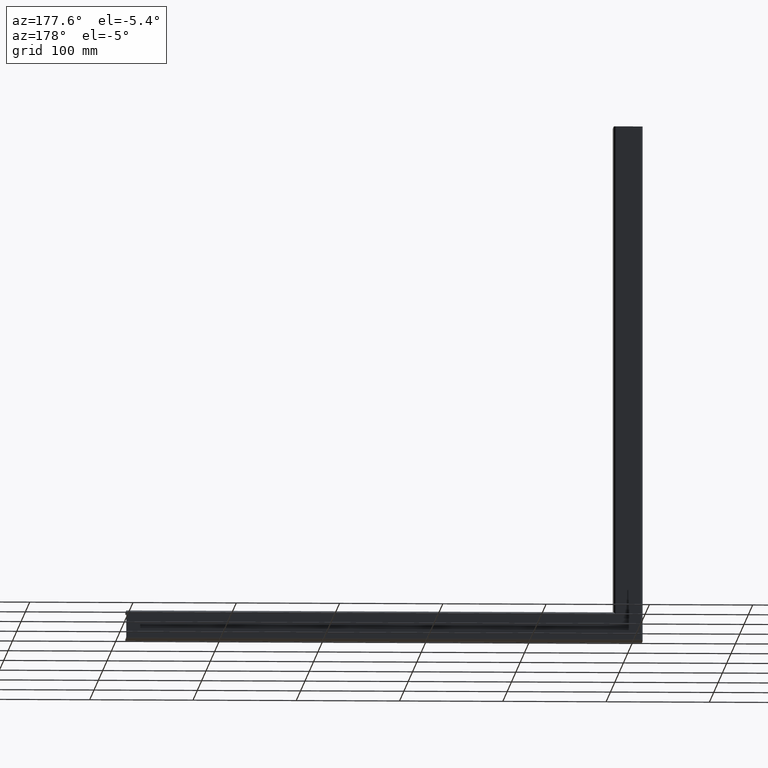
[diagram: clean part render]
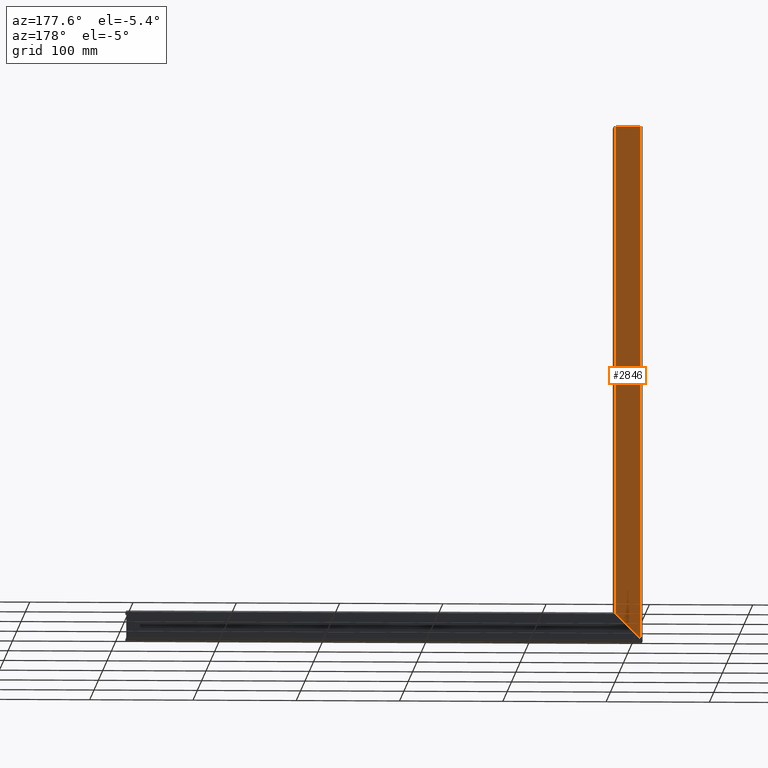
[diagram: same view with one face highlighted and labeled with its STEP entity id]
A machine part, auxiliary view. The second image highlights one B-rep face of the part: STEP entity #2846.
In plain terms, the highlighted planar face has unit normal (0, -1, 0).
Its self-contained STEP definition (entity closure, byte-faithful):
#326 = EDGE_CURVE ( 'NONE', #16030, #3477, #2890, .T. ) ;
#926 = VECTOR ( 'NONE', #2990, 1000.000000000000000 ) ;
#1493 = EDGE_CURVE ( 'NONE', #11846, #9061, #16071, .T. ) ;
#1678 = DIRECTION ( 'NONE',  ( -1.000000000000000000, -1.445602896647339163E-16, 0.000000000000000000 ) ) ;
#2846 = ADVANCED_FACE ( 'NONE', ( #12857 ), #5949, .F. ) ;
#2890 = LINE ( 'NONE', #10092, #13322 ) ;
#2908 = ORIENTED_EDGE ( 'NONE', *, *, #7332, .T. ) ;
#2990 = DIRECTION ( 'NONE',  ( 0.000000000000000000, 0.000000000000000000, -1.000000000000000000 ) ) ;
#3477 = VERTEX_POINT ( 'NONE', #15185 ) ;
#4576 = LINE ( 'NONE', #5765, #926 ) ;
#5765 = CARTESIAN_POINT ( 'NONE',  ( 12.00000000000000000, 13.00000000000000178, 0.000000000000000000 ) ) ;
#5949 = PLANE ( 'NONE',  #7686 ) ;
#5956 = DIRECTION ( 'NONE',  ( 0.7071067811865474617, 1.022195611122249302E-16, 0.7071067811865474617 ) ) ;
#6034 = LINE ( 'NONE', #13792, #10493 ) ;
#6070 = DIRECTION ( 'NONE',  ( 1.000000000000000000, 1.445602896647339163E-16, 0.000000000000000000 ) ) ;
#7067 = DIRECTION ( 'NONE',  ( 0.000000000000000000, 0.000000000000000000, -1.000000000000000000 ) ) ;
#7144 = CARTESIAN_POINT ( 'NONE',  ( -12.00000000000001599, 12.99999999999999822, -498.0000000000000000 ) ) ;
#7332 = EDGE_CURVE ( 'NONE', #16030, #9061, #4576, .T. ) ;
#7686 = AXIS2_PLACEMENT_3D ( 'NONE', #14208, #16841, #6070 ) ;
#7996 = CARTESIAN_POINT ( 'NONE',  ( 12.00000000000000533, 13.00000000000000178, -474.0000000000000000 ) ) ;
#8240 = ORIENTED_EDGE ( 'NONE', *, *, #1493, .F. ) ;
#8622 = VECTOR ( 'NONE', #5956, 1000.000000000000114 ) ;
#9061 = VERTEX_POINT ( 'NONE', #7996 ) ;
#9857 = EDGE_CURVE ( 'NONE', #3477, #11846, #6034, .T. ) ;
#10076 = EDGE_LOOP ( 'NONE', ( #11841, #14494, #2908, #8240 ) ) ;
#10092 = CARTESIAN_POINT ( 'NONE',  ( -12.00000000000000355, 12.99999999999999822, 0.000000000000000000 ) ) ;
#10493 = VECTOR ( 'NONE', #7067, 1000.000000000000000 ) ;
#10880 = CARTESIAN_POINT ( 'NONE',  ( 12.00000000000000000, 13.00000000000000178, 0.000000000000000000 ) ) ;
#11841 = ORIENTED_EDGE ( 'NONE', *, *, #9857, .F. ) ;
#11846 = VERTEX_POINT ( 'NONE', #7144 ) ;
#12857 = FACE_OUTER_BOUND ( 'NONE', #10076, .T. ) ;
#13322 = VECTOR ( 'NONE', #1678, 1000.000000000000000 ) ;
#13792 = CARTESIAN_POINT ( 'NONE',  ( -12.00000000000000355, 12.99999999999999822, 0.000000000000000000 ) ) ;
#14208 = CARTESIAN_POINT ( 'NONE',  ( -12.00000000000000355, 12.99999999999999822, 0.000000000000000000 ) ) ;
#14494 = ORIENTED_EDGE ( 'NONE', *, *, #326, .F. ) ;
#15185 = CARTESIAN_POINT ( 'NONE',  ( -12.00000000000000355, 12.99999999999999822, 0.000000000000000000 ) ) ;
#15291 = CARTESIAN_POINT ( 'NONE',  ( 237.0000000000000000, 13.00000000000003375, -249.0000000000000000 ) ) ;
#16030 = VERTEX_POINT ( 'NONE', #10880 ) ;
#16071 = LINE ( 'NONE', #15291, #8622 ) ;
#16841 = DIRECTION ( 'NONE',  ( 1.445602896647339163E-16, -1.000000000000000000, 0.000000000000000000 ) ) ;